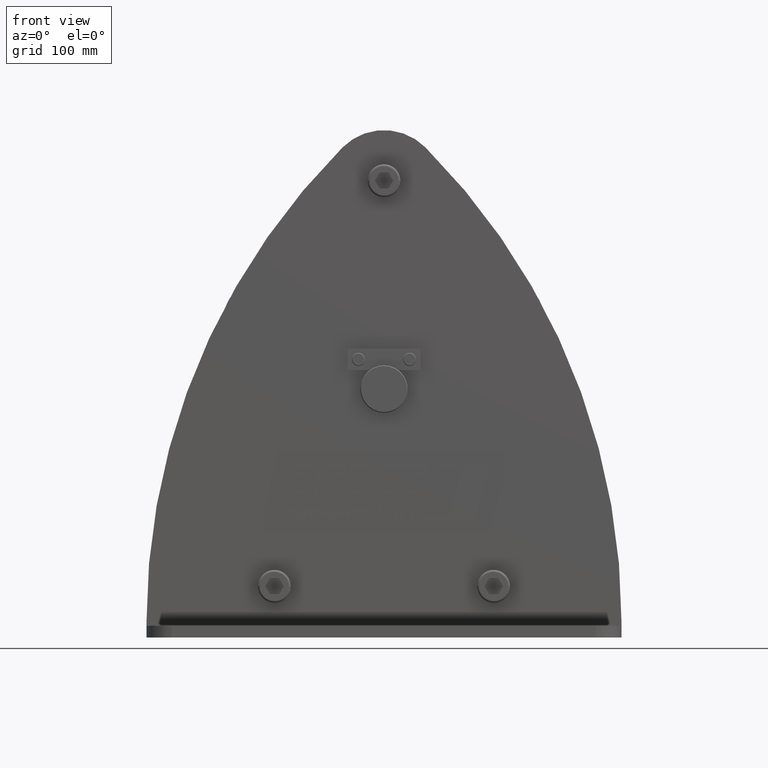
[diagram: clean part render]
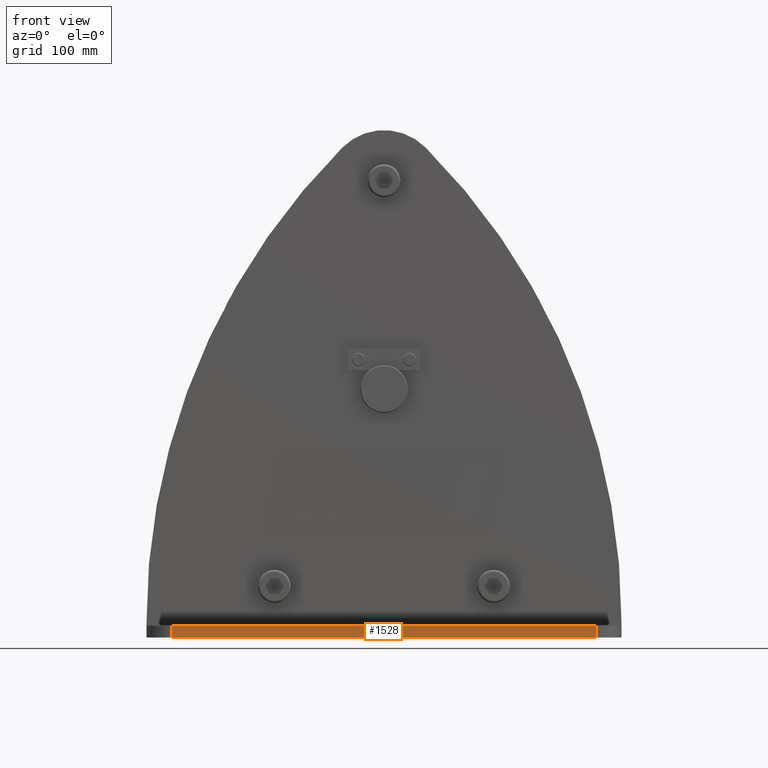
[diagram: same view with one face highlighted and labeled with its STEP entity id]
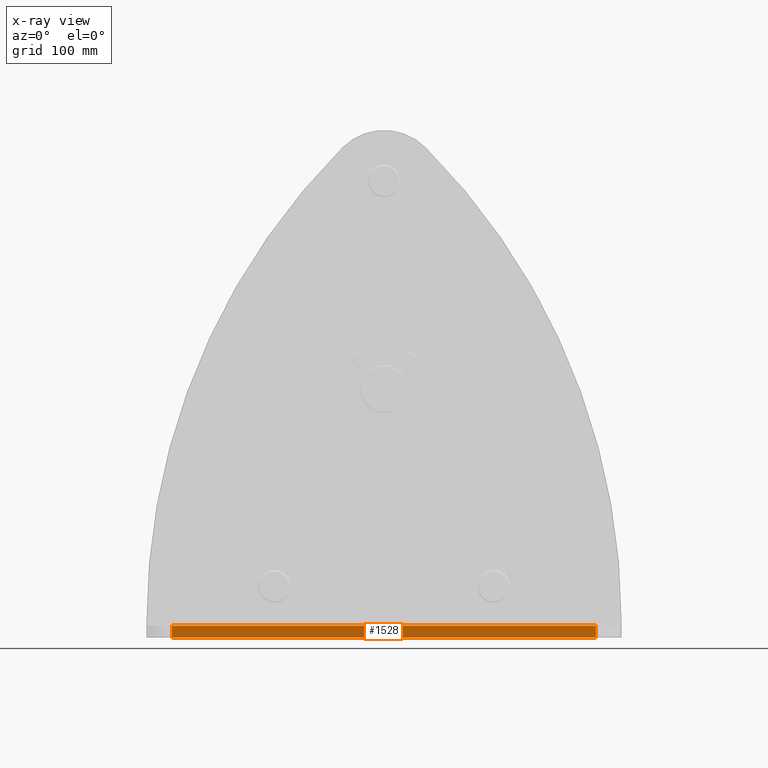
[diagram: x-ray of the same camera — body ghosted, the highlighted face saturated]
A machine part, front view. The second image highlights one B-rep face of the part: STEP entity #1528.
The next image is the same camera in x-ray: the body ghosted, the highlighted face saturated — about 0% of this face is hidden behind the body in this view.
In plain terms, the highlighted planar face has unit normal (0, -1, 0).
Its self-contained STEP definition (entity closure, byte-faithful):
#1528=ADVANCED_FACE('',(#3317),#3318,.T.);
#3317=FACE_OUTER_BOUND('',#5349,.T.);
#3318=PLANE('',#5350);
#5349=EDGE_LOOP('',(#10185,#10186,#10187,#10188));
#5350=AXIS2_PLACEMENT_3D('',#10189,#10190,#10191);
#10185=ORIENTED_EDGE('',*,*,#13902,.T.);
#10186=ORIENTED_EDGE('',*,*,#13905,.F.);
#10187=ORIENTED_EDGE('',*,*,#13887,.F.);
#10188=ORIENTED_EDGE('',*,*,#13907,.T.);
#10189=CARTESIAN_POINT('',(-3.80850906367414E-012,-156.5,-340.0));
#10190=DIRECTION('',(0.0,-1.0,0.0));
#10191=DIRECTION('',(1.0,0.0,0.0));
#13887=EDGE_CURVE('',#17251,#17253,#17254,.T.);
#13902=EDGE_CURVE('',#17279,#17277,#17280,.T.);
#13905=EDGE_CURVE('',#17253,#17277,#17283,.T.);
#13907=EDGE_CURVE('',#17251,#17279,#17285,.T.);
#17251=VERTEX_POINT('',#24823);
#17253=VERTEX_POINT('',#24825);
#17254=LINE('',#24826,#24827);
#17277=VERTEX_POINT('',#24856);
#17279=VERTEX_POINT('',#24858);
#17280=LINE('',#24859,#24860);
#17283=LINE('',#24863,#24864);
#17285=LINE('',#24866,#24867);
#24823=CARTESIAN_POINT('',(289.999999999992,-156.5,-340.0));
#24825=CARTESIAN_POINT('',(-290.0,-156.5,-340.0));
#24826=CARTESIAN_POINT('',(290.0,-156.5,-340.0));
#24827=VECTOR('',#29030,1.0);
#24856=CARTESIAN_POINT('',(-290.0,-156.5,-324.0));
#24858=CARTESIAN_POINT('',(289.999999999992,-156.5,-324.0));
#24859=CARTESIAN_POINT('',(290.0,-156.5,-324.0));
#24860=VECTOR('',#29055,1.0);
#24863=CARTESIAN_POINT('',(-290.0,-156.5,-340.0));
#24864=VECTOR('',#29059,1.0);
#24866=CARTESIAN_POINT('',(289.999999999992,-156.5,-340.0));
#24867=VECTOR('',#29060,1.0);
#29030=DIRECTION('',(-1.0,0.0,0.0));
#29055=DIRECTION('',(-1.0,0.0,0.0));
#29059=DIRECTION('',(0.0,0.0,1.0));
#29060=DIRECTION('',(0.0,0.0,1.0));